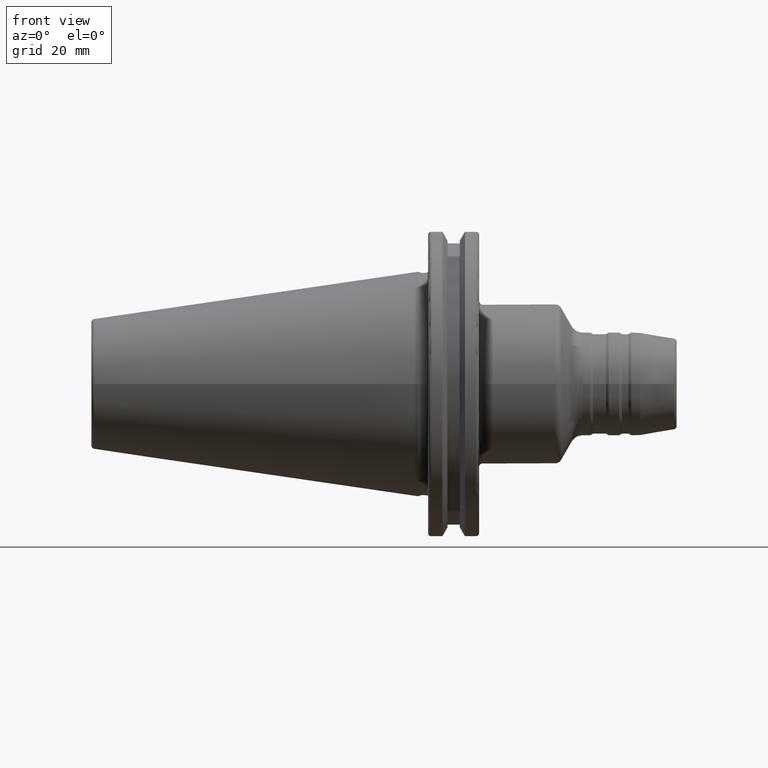
[diagram: clean part render]
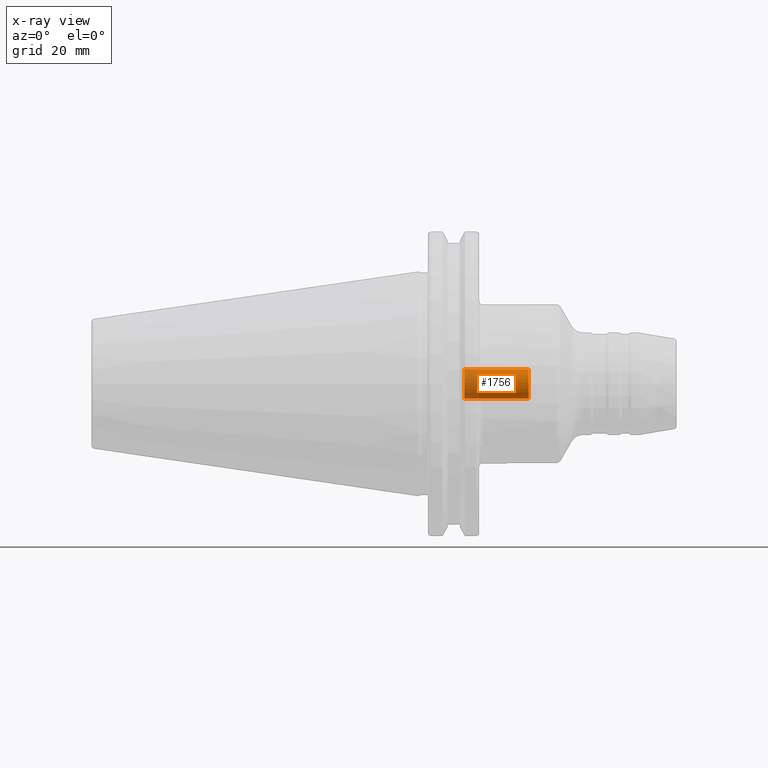
[diagram: x-ray — body ghosted, one internal face saturated and labeled with its STEP entity id]
A machine part, front view, then the same camera in x-ray: the body is ghosted and one INTERNAL B-rep face — a face not visible from any outside direction — is saturated and labeled: STEP entity #1756.
In plain terms, the highlighted cylindrical surface (bore or boss wall) has radius 4.6 mm, axis along (1, 0, 0).
Its self-contained STEP definition (entity closure, byte-faithful):
#167=FACE_OUTER_BOUND('',#275,.T.);
#275=EDGE_LOOP('',(#1180,#1181,#1182,#1183));
#397=LINE('',#2742,#495);
#495=VECTOR('',#2154,4.6);
#595=CIRCLE('',#1889,4.6);
#596=CIRCLE('',#1891,4.6);
#716=VERTEX_POINT('',#2737);
#717=VERTEX_POINT('',#2740);
#899=EDGE_CURVE('',#716,#716,#595,.T.);
#900=EDGE_CURVE('',#717,#717,#596,.T.);
#901=EDGE_CURVE('',#717,#716,#397,.T.);
#1180=ORIENTED_EDGE('',*,*,#900,.F.);
#1181=ORIENTED_EDGE('',*,*,#901,.T.);
#1182=ORIENTED_EDGE('',*,*,#899,.T.);
#1183=ORIENTED_EDGE('',*,*,#901,.F.);
#1720=CYLINDRICAL_SURFACE('',#1890,4.6);
#1756=ADVANCED_FACE('',(#167),#1720,.F.);
#1889=AXIS2_PLACEMENT_3D('',#2738,#2148,#2149);
#1890=AXIS2_PLACEMENT_3D('',#2739,#2150,#2151);
#1891=AXIS2_PLACEMENT_3D('',#2741,#2152,#2153);
#2148=DIRECTION('center_axis',(-1.,0.,0.));
#2149=DIRECTION('ref_axis',(0.,0.,-1.));
#2150=DIRECTION('center_axis',(1.,0.,0.));
#2151=DIRECTION('ref_axis',(0.,0.,-1.));
#2152=DIRECTION('center_axis',(-1.,0.,0.));
#2153=DIRECTION('ref_axis',(0.,0.,-1.));
#2154=DIRECTION('',(-1.,0.,0.));
#2737=CARTESIAN_POINT('',(14.5,5.63337527607783E-16,4.6));
#2738=CARTESIAN_POINT('Origin',(14.5,0.,0.));
#2739=CARTESIAN_POINT('Origin',(-193.128291264114,0.,0.));
#2740=CARTESIAN_POINT('',(34.5,-5.63337527607783E-16,4.6));
#2741=CARTESIAN_POINT('Origin',(34.5,0.,0.));
#2742=CARTESIAN_POINT('',(-193.128291264114,-5.63337527607783E-16,4.6));